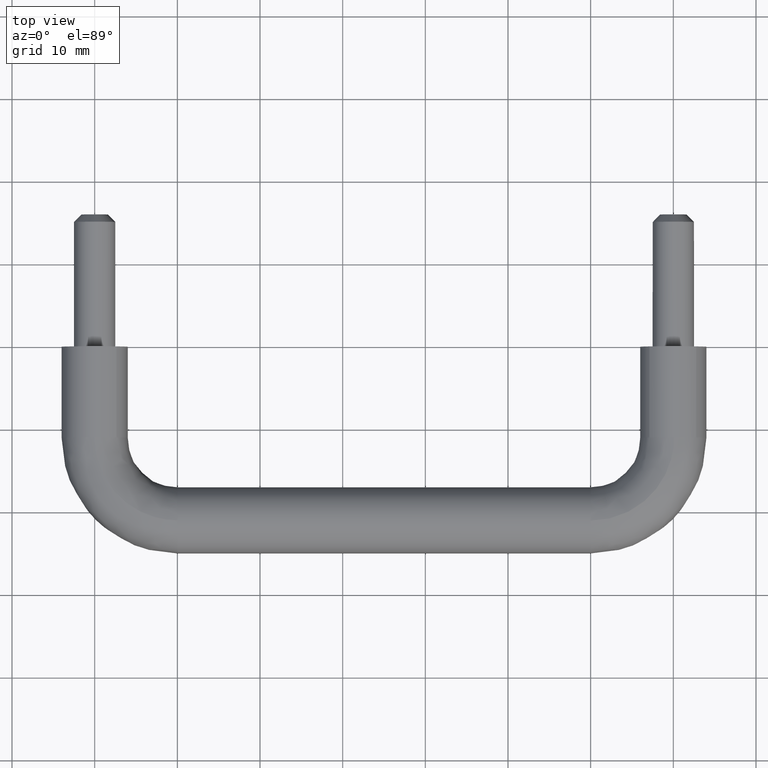
[diagram: clean part render]
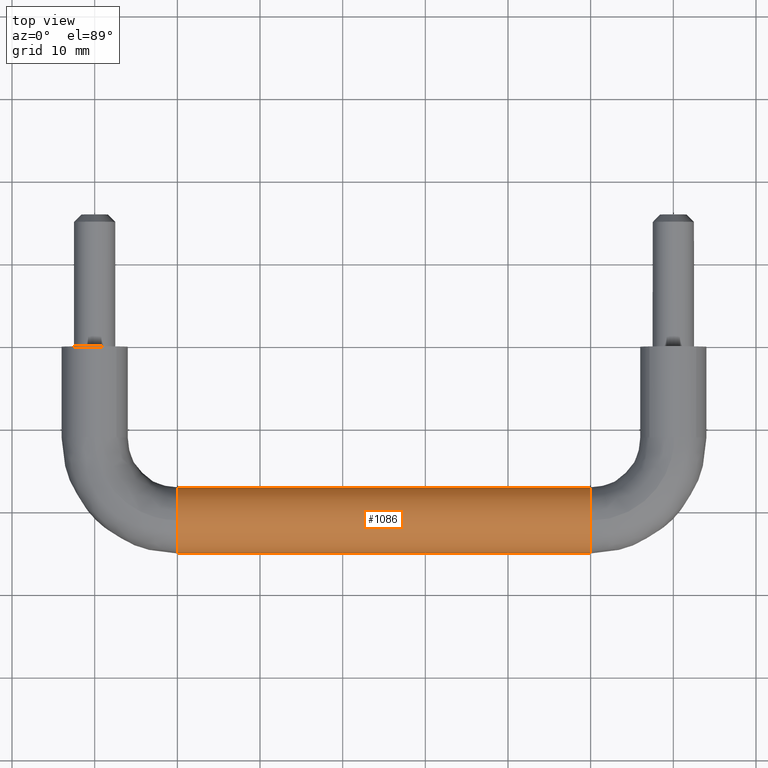
[diagram: same view with one face highlighted and labeled with its STEP entity id]
A machine part, top view. The second image highlights one B-rep face of the part: STEP entity #1086.
In plain terms, the highlighted face is a freeform B-spline surface patch.
Its self-contained STEP definition (entity closure, byte-faithful):
#924=CARTESIAN_POINT('',(8.749999999407832,-18.085145242384502,-2.739273944315588));
#925=CARTESIAN_POINT('',(8.749999999407830,-15.498302470239516,0.013379172849753));
#926=CARTESIAN_POINT('',(8.749999999407830,-18.098502515950852,2.753418302775015));
#927=CARTESIAN_POINT('',(8.749999999407830,-20.851920818725869,5.654915786824165));
#928=CARTESIAN_POINT('',(8.749999999407830,-23.753418302775010,2.901497484049150));
#929=CARTESIAN_POINT('',(8.749999999407830,-26.654915786824155,0.148079181274134));
#930=CARTESIAN_POINT('',(8.749999999407830,-23.901497484049148,-2.753418302775015));
#931=CARTESIAN_POINT('',(61.281250000268088,-18.085145242384492,-2.739273944315588));
#932=CARTESIAN_POINT('',(61.281250000268074,-15.498302470239500,0.013379172849753));
#933=CARTESIAN_POINT('',(61.281250000268081,-18.098502515950852,2.753418302775015));
#934=CARTESIAN_POINT('',(61.281250000268081,-20.851920818725855,5.654915786824165));
#935=CARTESIAN_POINT('',(61.281250000268081,-23.753418302775010,2.901497484049150));
#936=CARTESIAN_POINT('',(61.281250000268081,-26.654915786824155,0.148079181274134));
#937=CARTESIAN_POINT('',(61.281250000268081,-23.901497484049141,-2.753418302775015));
#945=(BOUNDED_SURFACE()B_SPLINE_SURFACE(2,1,((#924,#931),(#925,#932),(#926,#933),(#927,#934),(#928,#935),(#929,#936),(#930,#937)),.UNSPECIFIED.,.F.,.F.,.U.)B_SPLINE_SURFACE_WITH_KNOTS((3,2,2,3),(2,2),(0.0,6.362320318050738,12.989737316020260,19.617154313989779),(0.0,52.531250000860247),.UNSPECIFIED.)GEOMETRIC_REPRESENTATION_ITEM()RATIONAL_B_SPLINE_SURFACE(((0.977505800795127,0.977505800795127),(0.718822509939086,0.718822509939086),(1.0,1.0),(0.707106781186548,0.707106781186548),(1.0,1.0),(0.707106781186548,0.707106781186548),(1.0,1.0)))REPRESENTATION_ITEM('')SURFACE());
#946=CARTESIAN_POINT('',(59.999995410626042,-18.085144373023830,-2.739273019229506));
#947=VERTEX_POINT('',#946);
#948=CARTESIAN_POINT('',(60.0,-17.0,0.0));
#949=VERTEX_POINT('',#948);
#950=CARTESIAN_POINT('',(59.999995410626028,-18.085144373023823,-2.739273019229505));
#951=CARTESIAN_POINT('',(59.999998084996584,-17.000000000000025,-1.584572790525597));
#952=CARTESIAN_POINT('',(60.0,-17.0,0.0));
#960=(BOUNDED_CURVE()B_SPLINE_CURVE(2,(#950,#951,#952),.UNSPECIFIED.,.F.,.U.)B_SPLINE_CURVE_WITH_KNOTS((3,3),(0.379684538877428,0.500000000000000),.UNSPECIFIED.)CURVE()GEOMETRIC_REPRESENTATION_ITEM()RATIONAL_B_SPLINE_CURVE((0.853759071032117,0.859041669275140,1.0))REPRESENTATION_ITEM(''));
#961=EDGE_CURVE('',#947,#949,#960,.T.);
#962=ORIENTED_EDGE('',*,*,#961,.F.);
#963=CARTESIAN_POINT('',(10.000003123664021,-18.085144822978489,-2.739273498026444));
#964=VERTEX_POINT('',#963);
#965=CARTESIAN_POINT('',(10.000003123664021,-18.085144822978489,-2.739273498026444));
#966=CARTESIAN_POINT('',(59.999995410626042,-18.085144373023830,-2.739273019229506));
#967=QUASI_UNIFORM_CURVE('',1,(#965,#966),.UNSPECIFIED.,.F.,.U.);
#968=EDGE_CURVE('',#964,#947,#967,.T.);
#969=ORIENTED_EDGE('',*,*,#968,.F.);
#970=CARTESIAN_POINT('',(10.0,-17.0,0.0));
#971=VERTEX_POINT('',#970);
#972=CARTESIAN_POINT('',(10.000003123664017,-18.085144822978492,-2.739273498026444));
#973=CARTESIAN_POINT('',(10.000001319486849,-17.0,-1.584572816330424));
#974=CARTESIAN_POINT('',(10.0,-17.0,0.0));
#982=(BOUNDED_CURVE()B_SPLINE_CURVE(2,(#972,#973,#974),.UNSPECIFIED.,.F.,.U.)B_SPLINE_CURVE_WITH_KNOTS((3,3),(0.379684537194316,0.500000000000000),.UNSPECIFIED.)CURVE()GEOMETRIC_REPRESENTATION_ITEM()RATIONAL_B_SPLINE_CURVE((0.853759070884319,0.859041667303252,1.0))REPRESENTATION_ITEM(''));
#983=EDGE_CURVE('',#964,#971,#982,.T.);
#984=ORIENTED_EDGE('',*,*,#983,.T.);
#985=CARTESIAN_POINT('',(9.999999999428301,-21.050264161945130,3.999684176784955));
#986=VERTEX_POINT('',#985);
#987=CARTESIAN_POINT('',(10.0,-17.0,0.0));
#988=CARTESIAN_POINT('',(10.000000000000002,-17.000000000000004,4.000000000000000));
#989=CARTESIAN_POINT('',(10.0,-21.0,4.0));
#990=CARTESIAN_POINT('',(10.0,-21.025133074379568,4.000000000000000));
#991=CARTESIAN_POINT('',(9.999999999428301,-21.050264161945130,3.999684176784955));
#999=(BOUNDED_CURVE()B_SPLINE_CURVE(2,(#987,#988,#989,#990,#991),.UNSPECIFIED.,.F.,.U.)B_SPLINE_CURVE_WITH_KNOTS((3,2,3),(0.500000000000000,0.750000000000000,0.752215704290359),.UNSPECIFIED.)CURVE()GEOMETRIC_REPRESENTATION_ITEM()RATIONAL_B_SPLINE_CURVE((1.0,0.707106781186548,1.0,0.997404140953831,0.994854295155869))REPRESENTATION_ITEM(''));
#1000=EDGE_CURVE('',#971,#986,#999,.T.);
#1001=ORIENTED_EDGE('',*,*,#1000,.T.);
#1002=CARTESIAN_POINT('',(10.0,-25.0,0.0));
#1003=VERTEX_POINT('',#1002);
#1004=CARTESIAN_POINT('',(9.999999999428301,-21.050264161945126,3.999684176784955));
#1005=CARTESIAN_POINT('',(9.999999999999998,-24.999999999999993,3.950047714865288));
#1006=CARTESIAN_POINT('',(10.0,-25.0,0.0));
#1014=(BOUNDED_CURVE()B_SPLINE_CURVE(2,(#1004,#1005,#1006),.UNSPECIFIED.,.F.,.U.)B_SPLINE_CURVE_WITH_KNOTS((3,3),(0.752215704290360,1.0),.UNSPECIFIED.)CURVE()GEOMETRIC_REPRESENTATION_ITEM()RATIONAL_B_SPLINE_CURVE((0.994854295155867,0.709702640232717,1.0))REPRESENTATION_ITEM(''));
#1015=EDGE_CURVE('',#986,#1003,#1014,.T.);
#1016=ORIENTED_EDGE('',*,*,#1015,.T.);
#1017=CARTESIAN_POINT('',(10.000002846891970,-23.901497828615462,-2.753417939677727));
#1018=VERTEX_POINT('',#1017);
#1019=CARTESIAN_POINT('',(10.0,-25.0,0.0));
#1020=CARTESIAN_POINT('',(10.000001155614772,-25.0,-1.595837603655317));
#1021=CARTESIAN_POINT('',(10.000002846891972,-23.901497828615462,-2.753417939677727));
#1029=(BOUNDED_CURVE()B_SPLINE_CURVE(2,(#1019,#1020,#1021),.UNSPECIFIED.,.F.,.U.)B_SPLINE_CURVE_WITH_KNOTS((3,3),(0.0,0.121049488887875),.UNSPECIFIED.)CURVE()GEOMETRIC_REPRESENTATION_ITEM()RATIONAL_B_SPLINE_CURVE((1.0,0.858181702255628,0.853699664166494))REPRESENTATION_ITEM(''));
#1030=EDGE_CURVE('',#1003,#1018,#1029,.T.);
#1031=ORIENTED_EDGE('',*,*,#1030,.T.);
#1032=CARTESIAN_POINT('',(59.999995540924871,-23.901497832919951,-2.753417935140964));
#1033=VERTEX_POINT('',#1032);
#1034=CARTESIAN_POINT('',(10.000002846891970,-23.901497828615462,-2.753417939677727));
#1035=CARTESIAN_POINT('',(59.999995540924871,-23.901497832919951,-2.753417935140964));
#1036=QUASI_UNIFORM_CURVE('',1,(#1034,#1035),.UNSPECIFIED.,.F.,.U.);
#1037=EDGE_CURVE('',#1018,#1033,#1036,.T.);
#1038=ORIENTED_EDGE('',*,*,#1037,.T.);
#1039=CARTESIAN_POINT('',(60.0,-25.0,0.0));
#1040=VERTEX_POINT('',#1039);
#1041=CARTESIAN_POINT('',(60.0,-25.0,0.0));
#1042=CARTESIAN_POINT('',(59.999998165934080,-25.000000000000018,-1.595837596406055));
#1043=CARTESIAN_POINT('',(59.999995540924878,-23.901497832919951,-2.753417935140964));
#1051=(BOUNDED_CURVE()B_SPLINE_CURVE(2,(#1041,#1042,#1043),.UNSPECIFIED.,.F.,.U.)B_SPLINE_CURVE_WITH_KNOTS((3,3),(0.0,0.121049488416020),.UNSPECIFIED.)CURVE()GEOMETRIC_REPRESENTATION_ITEM()RATIONAL_B_SPLINE_CURVE((1.0,0.858181702808441,0.853699664201436))REPRESENTATION_ITEM(''));
#1052=EDGE_CURVE('',#1040,#1033,#1051,.T.);
#1053=ORIENTED_EDGE('',*,*,#1052,.F.);
#1054=CARTESIAN_POINT('',(60.000000000247098,-21.100520383177319,3.998736757097906));
#1055=VERTEX_POINT('',#1054);
#1056=CARTESIAN_POINT('',(60.000000000247098,-21.100520383177322,3.998736757097907));
#1057=CARTESIAN_POINT('',(59.999999999999986,-24.999999999999989,3.900711501982625));
#1058=CARTESIAN_POINT('',(60.0,-25.0,0.0));
#1066=(BOUNDED_CURVE()B_SPLINE_CURVE(2,(#1056,#1057,#1058),.UNSPECIFIED.,.F.,.U.)B_SPLINE_CURVE_WITH_KNOTS((3,3),(0.754420108353063,1.0),.UNSPECIFIED.)CURVE()GEOMETRIC_REPRESENTATION_ITEM()RATIONAL_B_SPLINE_CURVE((0.989826157403852,0.712285260238679,1.0))REPRESENTATION_ITEM(''));
#1067=EDGE_CURVE('',#1055,#1040,#1066,.T.);
#1068=ORIENTED_EDGE('',*,*,#1067,.F.);
#1069=CARTESIAN_POINT('',(60.0,-17.0,0.0));
#1070=CARTESIAN_POINT('',(60.0,-17.000000000000004,4.000000000000000));
#1071=CARTESIAN_POINT('',(60.0,-21.0,4.0));
#1072=CARTESIAN_POINT('',(60.000000000000007,-21.050268129898161,4.0));
#1073=CARTESIAN_POINT('',(60.000000000247098,-21.100520383177322,3.998736757097906));
#1081=(BOUNDED_CURVE()B_SPLINE_CURVE(2,(#1069,#1070,#1071,#1072,#1073),.UNSPECIFIED.,.F.,.U.)B_SPLINE_CURVE_WITH_KNOTS((3,2,3),(0.500000000000000,0.750000000000000,0.754420108353064),.UNSPECIFIED.)CURVE()GEOMETRIC_REPRESENTATION_ITEM()RATIONAL_B_SPLINE_CURVE((1.0,0.707106781186548,1.0,0.994821520947867,0.989826157403851))REPRESENTATION_ITEM(''));
#1082=EDGE_CURVE('',#949,#1055,#1081,.T.);
#1083=ORIENTED_EDGE('',*,*,#1082,.F.);
#1084=EDGE_LOOP('',(#962,#969,#984,#1001,#1016,#1031,#1038,#1053,#1068,#1083));
#1085=FACE_OUTER_BOUND('',#1084,.T.);
#1086=ADVANCED_FACE('',(#1085),#945,.T.);